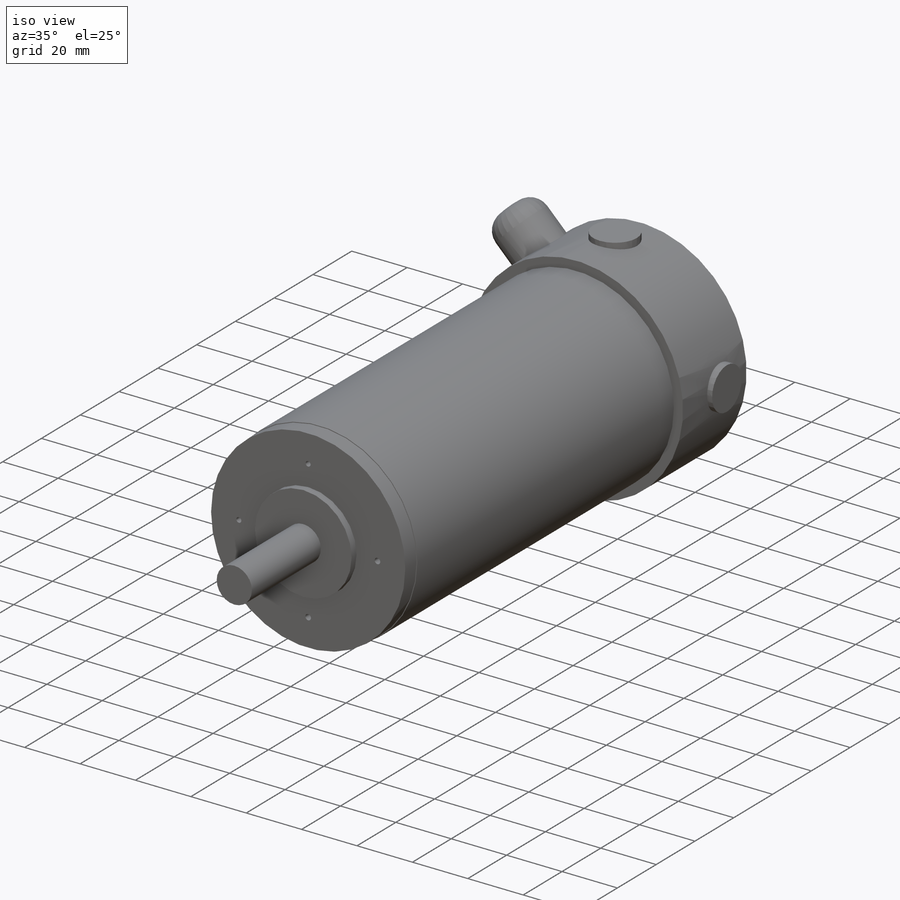
[diagram: iso view]
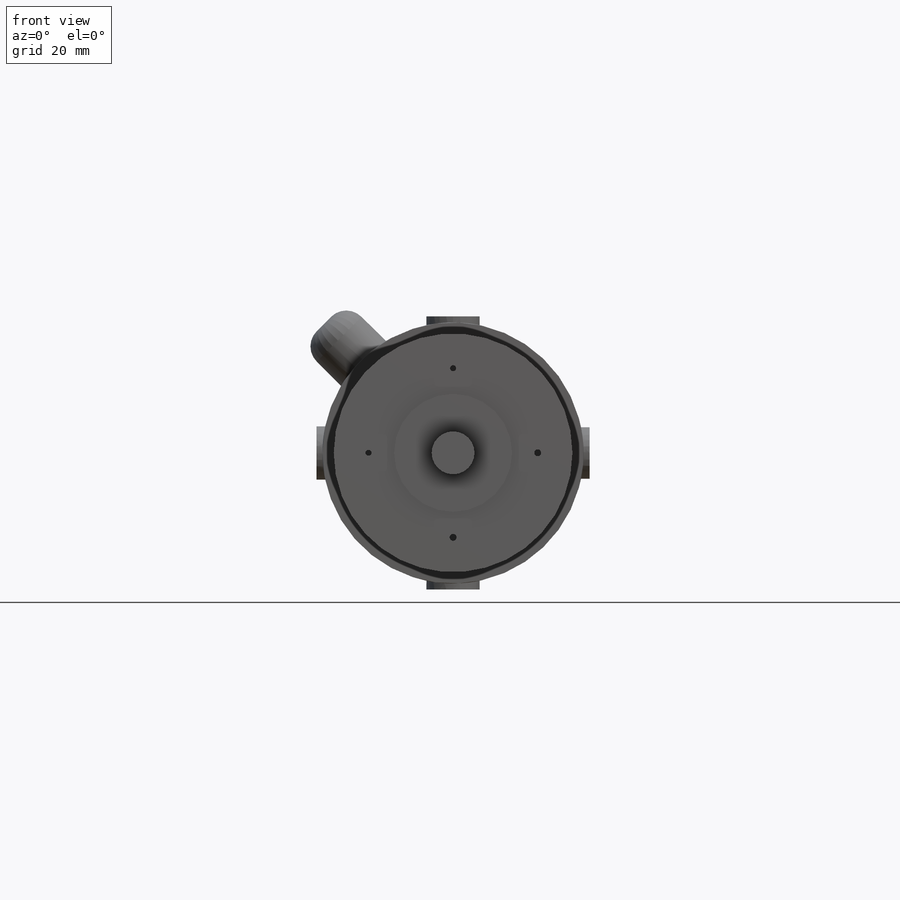
[diagram: front view]
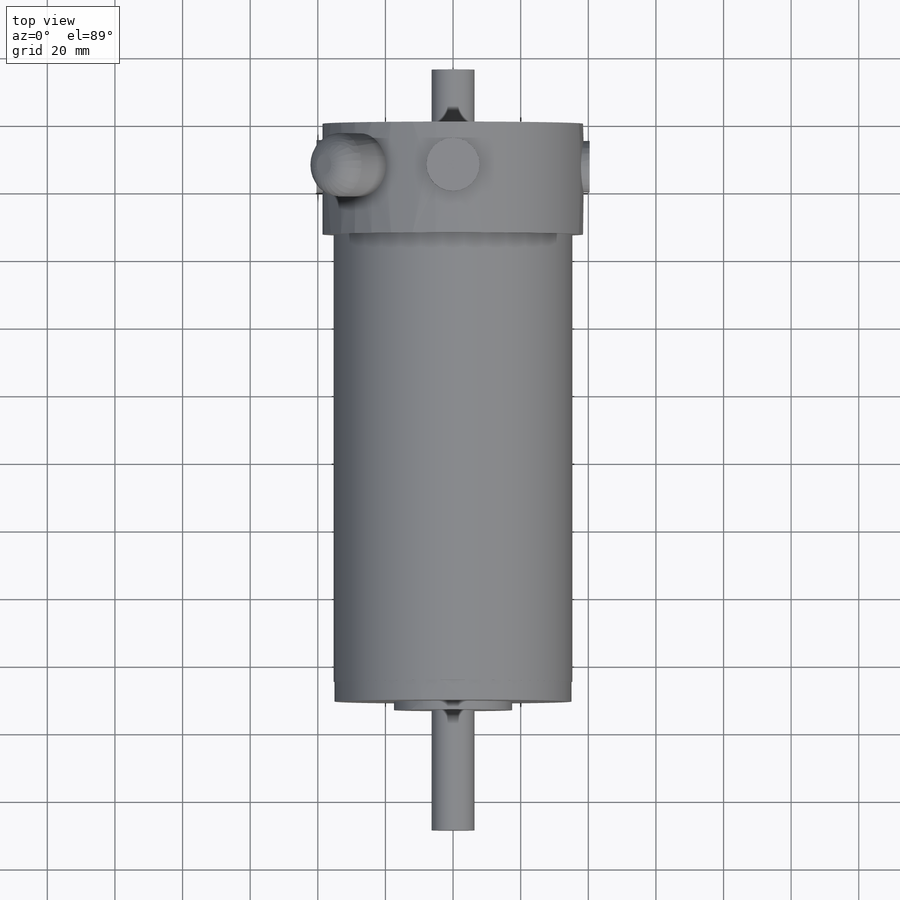
[diagram: top view]
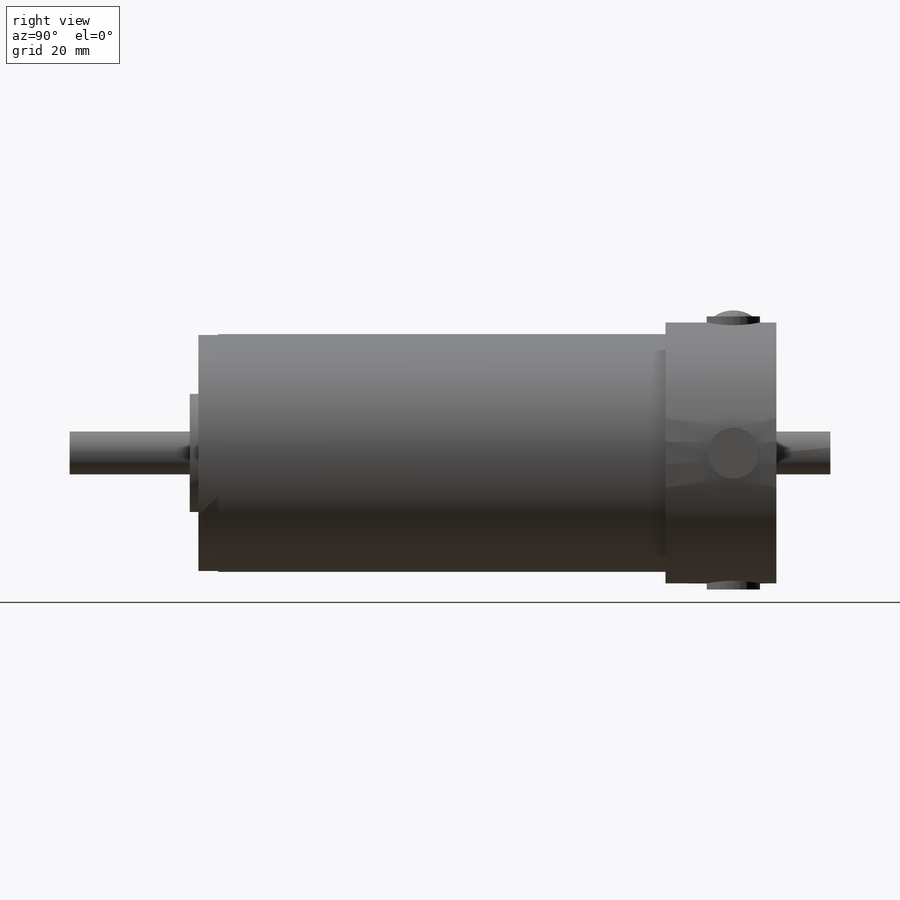
[diagram: right view]
SOLIDWORKS PART (.sldprt)
format: sldprt  version: not decoded by parser v0  size: 307,712 bytes
history: native  units: mm
features: sketch x14, extrude x11, plane x6, material x1, fillet x1 (+10 scaffold rows collapsed)
feature tree (43):
  scaffold x10  (default folders/planes/origin — collapsed)
  material  "Material <not specified>"
  plane  "Plane1"
  plane  "Plane2"
  plane  "Plane3"
  sketch  "Sketch1"  dims[D1=~4.063954mm]
  extrude  "Base-Extrude"  Depth=165.1mm
  sketch  "Sketch2"  dims[D1=~49.595085mm]
  extrude  "Boss-Extrude1"  Depth=32.766mm
  sketch  "Sketch3"  dims[D1=~8.980256mm]
  extrude  "Boss-Extrude2"  Depth=43.942mm
  sketch  "Sketch4"  dims[D1=~13.73715mm]
  extrude  "Boss-Extrude3"  Depth=8.382mm
  sketch  "Sketch5"
  sketch  "Sketch6"
  plane  "Plane4"
  sketch  "Sketch7"  dims[D1=~9.919017mm]
  extrude  "Boss-Extrude5"  Depth=40.386mm
  sketch  "Sketch9"
  extrude  "Boss-Extrude7"  Depth=80.772mm
  sketch  "Sketch10"
  plane  "Plane5"
  sketch  "Sketch11"  dims[D1=12.5095mm]
  extrude  "Boss-Extrude8"  Depth=40.386mm
  sketch  "Sketch12"  dims[D1=12.5095mm]
  extrude  "Boss-Extrude10"  Depth=80.772mm
  plane  "Plane6"
  sketch  "Sketch13"  dims[D1=36.83mm]
  extrude  "Boss-Extrude11"  Depth=53.975mm
  fillet  "Fillet1"  Radius=6.35mm
  sketch  "Sketch14"  dims[D1=~7.405309mm]
  extrude  "Boss-Extrude12"  Depth=16.002mm
  sketch  "Sketch15"  dims[D1=35.306mm]
  extrude  "Boss-Extrude13"  Depth=5.842mm
decode coverage: 22 of 26 modeling features carry decoded parameters
note: ~ marks probable driven/reference dimensions
note: suppression state not decoded; provenance and decode notes live in map.json
